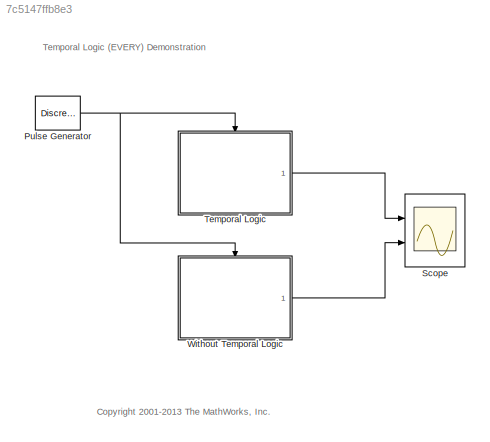
MODEL slx_7c5147ffb8e3
KIND model
CONFIG AbsTol = auto
CONFIG EnableMultiTasking = on
CONFIG FixedStep = auto
CONFIG MaxStep = auto
CONFIG MinStep = auto
CONFIG RelTol = 1e-3
CONFIG SampleTimeConstraint = Unconstrained
CONFIG Solver = ode45
CONFIG SolverName = ode45
CONFIG StartTime = 0.0
CONFIG StopTime = 100
BLOCK [DiscretePulseGenerator] Pulse Generator
  Period = 1
  Ports = [0, 1]
  PulseType = Time based
  PulseWidth = .5
BLOCK [Scope] Scope
  NumInputPorts = 2
  Ports = [2]
  ScopeSpecificationString = Simulink.scopes.TimeScopeBlockCfg('CurrentConfiguration', extmgr.ConfigurationSet(extmgr.Configuration('Core','General UI',true),extmgr.Configuration('Core','Source UI',true),extmgr.Configuration('Sources','WiredSimulink',true,'DataLoggingLimitDataPoints',true,'DataLoggingDecimation','1','DataLoggingSaveFormat','StructureWithTime'),extmgr.Configuration('Visuals','Time Domain',true,'SerializedDispl...<+2339ch>
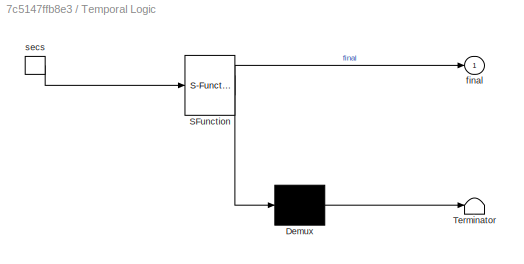
BLOCK [SubSystem] Temporal Logic
  ErrorFcn = Stateflow.Translate.translate
  PermitHierarchicalResolution = ExplicitOnly
  Ports = [0, 1, 0, 1]
  RequestExecContextInheritance = off
  SFBlockType = Chart
  TreatAsAtomicUnit = on
  Variant = off
BLOCK [Demux] Temporal Logic/ Demux 
  Outputs = 1
  Ports = [1, 1]
BLOCK [S-Function] Temporal Logic/ SFunction 
  EnableBusSupport = off
  FunctionName = sf_sfun
  PortCounts = [1 2]
  Ports = [1, 2]
  SFcnIsStateOwnerBlock = off
  SFunctionDeploymentMode = off
  Tag = Stateflow S-Function sf_tlevery 2
BLOCK [Terminator] Temporal Logic/ Terminator 
BLOCK [Outport] Temporal Logic/final
  IconDisplay = Port number
BLOCK [TriggerPort] Temporal Logic/secs
  Ports = [0, 1]
  ShowOutputPort = on
  VariantControl = (inherit)
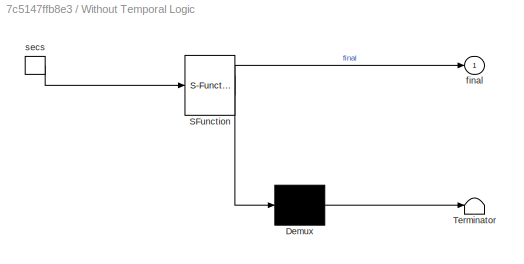
BLOCK [SubSystem] Without Temporal Logic
  ErrorFcn = Stateflow.Translate.translate
  PermitHierarchicalResolution = ExplicitOnly
  Ports = [0, 1, 0, 1]
  RequestExecContextInheritance = off
  SFBlockType = Chart
  TreatAsAtomicUnit = on
  Variant = off
BLOCK [Demux] Without Temporal Logic/ Demux 
  Outputs = 1
  Ports = [1, 1]
BLOCK [S-Function] Without Temporal Logic/ SFunction 
  EnableBusSupport = off
  FunctionName = sf_sfun
  PortCounts = [1 2]
  Ports = [1, 2]
  SFcnIsStateOwnerBlock = off
  SFunctionDeploymentMode = off
  Tag = Stateflow S-Function sf_tlevery 1
BLOCK [Terminator] Without Temporal Logic/ Terminator 
BLOCK [Outport] Without Temporal Logic/final
  IconDisplay = Port number
BLOCK [TriggerPort] Without Temporal Logic/secs
  Ports = [0, 1]
  ShowOutputPort = on
  VariantControl = (inherit)
ANNOTATION (root): <copyright redacted>
ANNOTATION (root): Temporal Logic (EVERY) Demonstration
NET Pulse Generator:1 -> Temporal Logic:trigger, Without Temporal Logic:trigger
LINE Temporal Logic:1 -> Scope:1
LINE Without Temporal Logic:1 -> Scope:2
note: NET lines group one-source signal fan-out (src -> all destinations, sorted); 1:1 wires keep LINE
CHART Without Temporal Logic states=9 transitions=8
  STATE_LABEL 'State'
  STATE_LABEL 'A'
  STATE_LABEL '[count==5]{first_counter = first_counter + 1;}'
  STATE_LABEL '{count=0;}'
  STATE_LABEL 'A'
  STATE_LABEL 'State_two'
  STATE_LABEL 'B'
  STATE_LABEL '[n==10]{final=double_counter(first_counter);}'
  STATE_LABEL '{n=0;}'
  STATE_LABEL 'B'
  STATE_LABEL 'Counter_two'
  STATE_LABEL 'Two\nentry: n=1;'
  STATE_LABEL '{n = n + 1;}'
  STATE_LABEL 'Two\nentry: n=1;'
  STATE_LABEL '{n = n + 1;}'
  STATE_LABEL 'Counter'
  STATE_LABEL 'One\nentry: count=1;'
  STATE_LABEL '{count = count + 1;}'
  STATE_LABEL 'One\nentry: count=1;'
  STATE_LABEL '{count = count + 1;}'
  STATE_LABEL 'output = double_counter(input)'
  STATE_LABEL '{output=2.*input;}'
CHART Temporal Logic states=2 transitions=2
  STATE_LABEL 'Active\n\non every(5,secs): count = count + 1;\non every(10,secs):final=double_counter(count);'
  STATE_LABEL 'output = double_counter(input)'
  STATE_LABEL '{output=2.*input;}'
